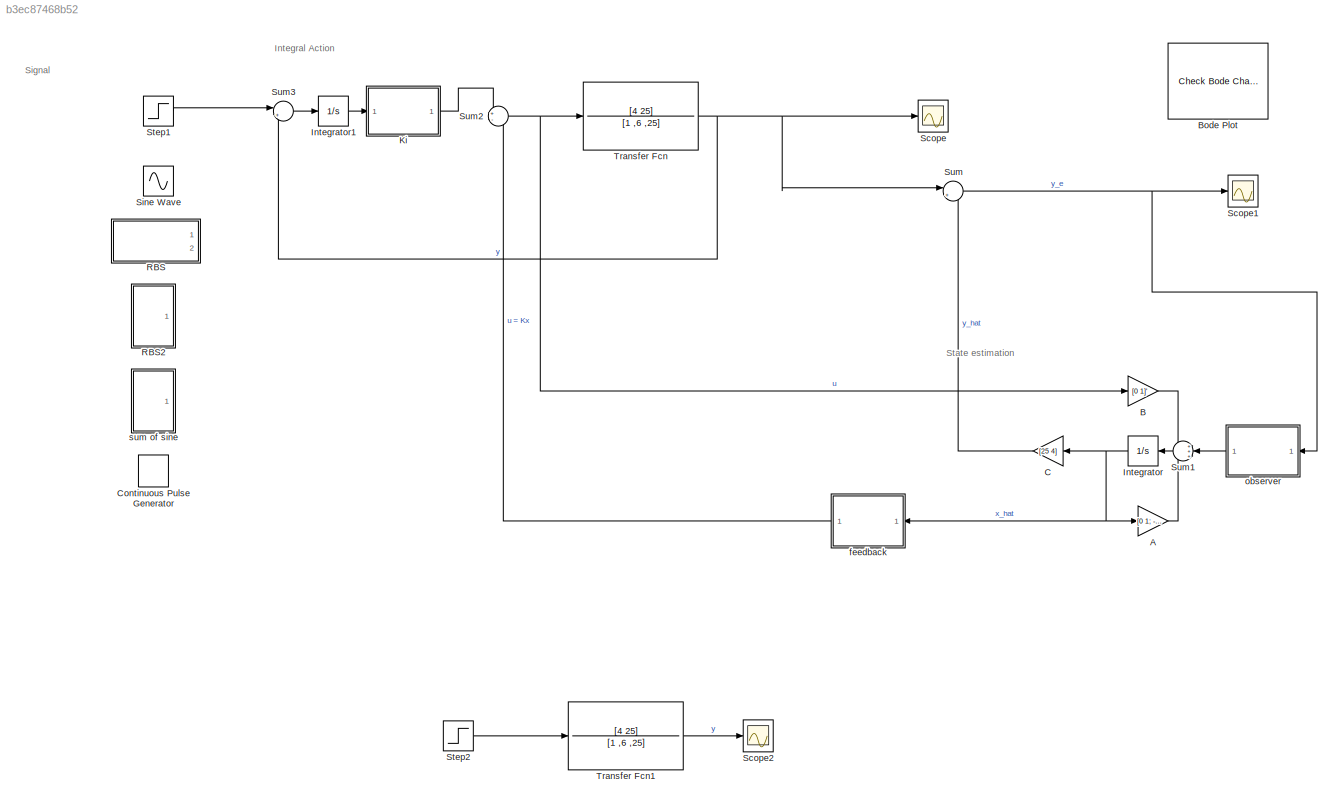
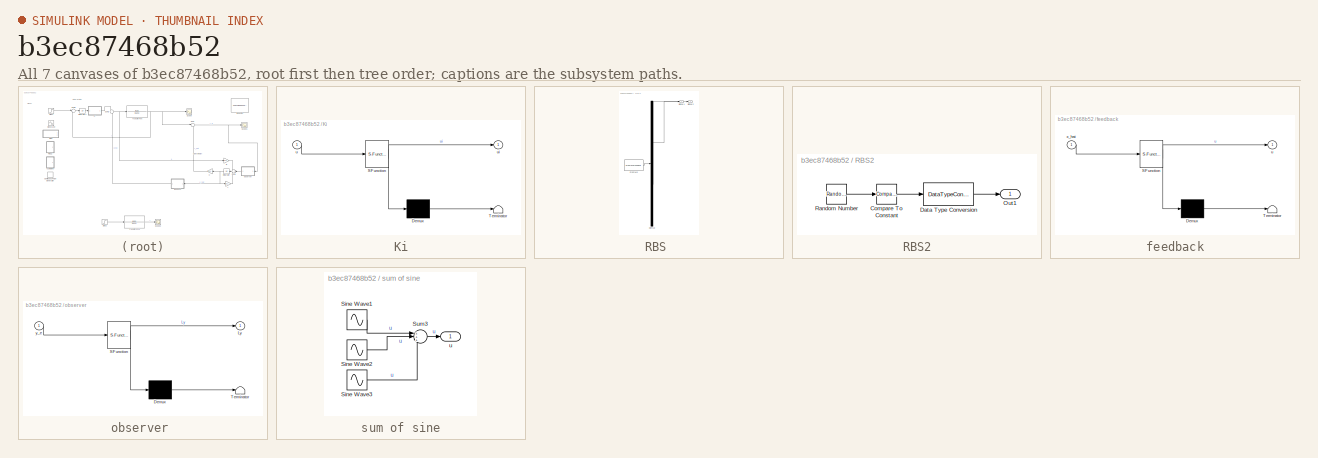
[diagram: thumbnail index - all 7 canvases of the model, root first then tree order]
MODEL slx_b3ec87468b52
KIND model
CONFIG AbsTol = auto
CONFIG EnableMultiTasking = off
CONFIG FixedStep = auto
CONFIG MaxStep = 1.0
CONFIG MinStep = auto
CONFIG RelTol = 1e-3
CONFIG SampleTimeConstraint = Unconstrained
CONFIG Solver = ode45
CONFIG SolverName = ode45
CONFIG StartTime = 0.0
CONFIG StopTime = 50.0
BLOCK [Gain] A
  Gain = [0 1; -25 -6]
  Multiplication = Matrix(K*u)
  OutDataTypeStr = Inherit: Inherit via internal rule
  ParamDataTypeStr = Inherit: Inherit via internal rule
  SaturateOnIntegerOverflow = off
BLOCK [Gain] B
  Gain = [0 1]'
  Multiplication = Matrix(K*u)
  OutDataTypeStr = Inherit: Inherit via internal rule
  ParamDataTypeStr = Inherit: Inherit via internal rule
  SaturateOnIntegerOverflow = off
BLOCK [Reference] Bode Plot  REF=slctrlblks/Model Verification/Check Bode 
Characteristics
  InstantiateOnLoad = on
  Ports = []
  SourceBlock = slctrlblks/Model Verification/Check Bode \nCharacteristics
  SourceProductBaseCode = SD
  SourceProductName = Simulink Control Design
  SourceType = Checks_Bode
BLOCK [Gain] C
  Gain = [25 4]
  Multiplication = Matrix(K*u)
  OutDataTypeStr = Inherit: Inherit via internal rule
  ParamDataTypeStr = Inherit: Inherit via internal rule
  SaturateOnIntegerOverflow = off
BLOCK [DiscretePulseGenerator] Continuous Pulse Generator
  Period = 1
  Ports = [0, 1]
  PulseType = Time based
  PulseWidth = 50
BLOCK [Integrator] Integrator
  Ports = [1, 1]
BLOCK [Integrator] Integrator1
  Ports = [1, 1]
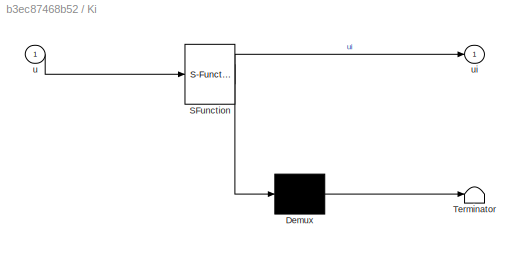
BLOCK [SubSystem] Ki
  ErrorFcn = Stateflow.Translate.translate
  PermitHierarchicalResolution = ExplicitOnly
  Ports = [1, 1]
  RequestExecContextInheritance = off
  SFBlockType = MATLAB Function
  TreatAsAtomicUnit = on
BLOCK [Demux] Ki/ Demux 
  Outputs = 1
  Ports = [1, 1]
BLOCK [S-Function] Ki/ SFunction 
  EnableBusSupport = on
  FunctionName = sf_sfun
  PortCounts = [1 2]
  Ports = [1, 2]
  SFcnIsStateOwnerBlock = off
  SFunctionDeploymentMode = off
  Tag = Stateflow S-Function 2
BLOCK [Terminator] Ki/ Terminator 
BLOCK [Inport] Ki/u
  IconDisplay = Port number
BLOCK [Outport] Ki/ui
  IconDisplay = Port number
BLOCK [SubSystem] RBS 
  ClipboardFcn = sigbuilder_block('clipboard');
  CloseFcn = sigbuilder_block('close');
  ContinueFcn = sigbuilder_block('continue');
  CopyFcn = sigbuilder_block('copy');
  DeleteFcn = sigbuilder_block('delete');
  LoadFcn = sigbuilder_block('load');
  MaskHideContents = on
  ModelCloseFcn = sigbuilder_block('modelClose');
  NameChangeFcn = sigbuilder_block('namechange');
  OpenFcn = sigbuilder_block('open',[215 62.5 550.5 362.5 ]);
  PauseFcn = sigbuilder_block('pause');
  Ports = [0, 2]
  PreSaveFcn = sigbuilder_block('preSave');
  RequestExecContextInheritance = off
  StartFcn = sigbuilder_block('start');
  StopFcn = sigbuilder_block('stop');
  Tag = STV Subsys
BLOCK [Demux] RBS /Demux
  Outputs = 2
  Ports = [1, 2]
  Tag = STV Demux
BLOCK [FromWorkspace] RBS /FromWs
  SampleTime = 0
  Tag = STV FromWs
  VariableName = tuvar
  ZeroCross = on
BLOCK [Outport] RBS /Signal 1
  IconDisplay = Port number
  Tag = STV Outport
BLOCK [Outport] RBS /Signal 2
  IconDisplay = Port number
  Port = 2
  Tag = STV Outport
BLOCK [SubSystem] RBS2
  Ports = [0, 1]
  RequestExecContextInheritance = off
BLOCK [Reference] RBS2/Compare To Constant  REF=simulink/Logic and Bit
Operations/Compare
To Constant
  Ports = [1, 1]
  SourceBlock = simulink/Logic and Bit\nOperations/Compare\nTo Constant
  SourceProductBaseCode = SL
  SourceProductName = Simulink
  SourceType = Compare To Constant
BLOCK [DataTypeConversion] RBS2/Data Type Conversion
  OutDataTypeStr = double
  RndMeth = Floor
  SaturateOnIntegerOverflow = off
BLOCK [Outport] RBS2/Out1
  IconDisplay = Port number
BLOCK [RandomNumber] RBS2/Random Number
  Mean = 1
  SampleTime = 10
BLOCK [Scope] Scope
  Floating = off
  NumInputPorts = 1
  Ports = [1]
  ScopeSpecificationString = Simulink.scopes.TimeScopeBlockCfg('CurrentConfiguration', extmgr.ConfigurationSet(extmgr.Configuration('Core','General UI',true),extmgr.Configuration('Core','Source UI',true),extmgr.Configuration('Sources','WiredSimulink',true,'DataLoggingVariableName','ScopeData1'),extmgr.Configuration('Visuals','Time Domain',true,'SerializedDisplays',{struct('MinYLimReal','-0.14795','MaxYLimReal','1.33155','YLab...<+1430ch>
BLOCK [Scope] Scope1
  Floating = off
  NumInputPorts = 1
  Ports = [1]
  ScopeSpecificationString = Simulink.scopes.TimeScopeBlockCfg('CurrentConfiguration', extmgr.ConfigurationSet(extmgr.Configuration('Core','General UI',true),extmgr.Configuration('Core','Source UI',true),extmgr.Configuration('Sources','WiredSimulink',true),extmgr.Configuration('Visuals','Time Domain',true,'SerializedDisplays',{struct('MinYLimReal','-0.0056','MaxYLimReal','0.05037','YLabelReal','','MinYLimMag','0.00000','MaxYL...<+1389ch>
BLOCK [Scope] Scope2
  Floating = off
  NumInputPorts = 1
  Ports = [1]
  ScopeSpecificationString = Simulink.scopes.TimeScopeBlockCfg('CurrentConfiguration', extmgr.ConfigurationSet(extmgr.Configuration('Core','General UI',true),extmgr.Configuration('Core','Source UI',true),extmgr.Configuration('Sources','WiredSimulink',true,'DataLoggingVariableName','ScopeData1'),extmgr.Configuration('Visuals','Time Domain',true,'SerializedDisplays',{struct('MinYLimReal','-0.14399','MaxYLimReal','1.29593','YLab...<+1430ch>
BLOCK [Sin] Sine Wave
  Frequency = 0.1
  Ports = [0, 1]
  SampleTime = 0
BLOCK [Step] Step1
  SampleTime = 0
BLOCK [Step] Step2
  SampleTime = 0
BLOCK [Sum] Sum
  IconShape = round
  InputSameDT = off
  Inputs = |+-
  OutDataTypeStr = Inherit: Inherit via internal rule
  Ports = [2, 1]
  SaturateOnIntegerOverflow = off
BLOCK [Sum] Sum1
  IconShape = round
  InputSameDT = off
  Inputs = +++
  OutDataTypeStr = Inherit: Inherit via internal rule
  Ports = [3, 1]
  SaturateOnIntegerOverflow = off
BLOCK [Sum] Sum2
  IconShape = round
  InputSameDT = off
  Inputs = +-
  OutDataTypeStr = Inherit: Inherit via internal rule
  Ports = [2, 1]
  SaturateOnIntegerOverflow = off
BLOCK [Sum] Sum3
  IconShape = round
  InputSameDT = off
  Inputs = |+-
  OutDataTypeStr = Inherit: Inherit via internal rule
  Ports = [2, 1]
  SaturateOnIntegerOverflow = off
BLOCK [TransferFcn] Transfer Fcn
  Denominator = [1 ,6 ,25]
  Numerator = [4 25]
BLOCK [TransferFcn] Transfer Fcn1
  Denominator = [1 ,6 ,25]
  Numerator = [4 25]
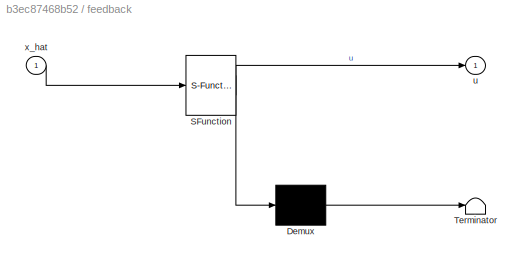
BLOCK [SubSystem] feedback
  ErrorFcn = Stateflow.Translate.translate
  PermitHierarchicalResolution = ExplicitOnly
  Ports = [1, 1]
  RequestExecContextInheritance = off
  SFBlockType = MATLAB Function
  TreatAsAtomicUnit = on
BLOCK [Demux] feedback/ Demux 
  Outputs = 1
  Ports = [1, 1]
BLOCK [S-Function] feedback/ SFunction 
  EnableBusSupport = on
  FunctionName = sf_sfun
  PortCounts = [1 2]
  Ports = [1, 2]
  SFcnIsStateOwnerBlock = off
  SFunctionDeploymentMode = off
  Tag = Stateflow S-Function 4
BLOCK [Terminator] feedback/ Terminator 
BLOCK [Outport] feedback/u
  IconDisplay = Port number
BLOCK [Inport] feedback/x_hat
  IconDisplay = Port number
BLOCK [SubSystem] observer 
  ErrorFcn = Stateflow.Translate.translate
  PermitHierarchicalResolution = ExplicitOnly
  Ports = [1, 1]
  RequestExecContextInheritance = off
  SFBlockType = MATLAB Function
  TreatAsAtomicUnit = on
BLOCK [Demux] observer / Demux 
  Outputs = 1
  Ports = [1, 1]
BLOCK [S-Function] observer / SFunction 
  EnableBusSupport = on
  FunctionName = sf_sfun
  PortCounts = [1 2]
  Ports = [1, 2]
  SFcnIsStateOwnerBlock = off
  SFunctionDeploymentMode = off
  Tag = Stateflow S-Function 1
BLOCK [Terminator] observer / Terminator 
BLOCK [Outport] observer /Ly
  IconDisplay = Port number
BLOCK [Inport] observer /y_e
  IconDisplay = Port number
BLOCK [SubSystem] sum of sine
  Ports = [0, 1]
  RequestExecContextInheritance = off
BLOCK [Sin] sum of sine/Sine Wave1
  Frequency = 0.1
  Phase = 0.1
  Ports = [0, 1]
  SampleTime = 0
BLOCK [Sin] sum of sine/Sine Wave2
  Ports = [0, 1]
  SampleTime = 0
BLOCK [Sin] sum of sine/Sine Wave3
  Frequency = 2
  Ports = [0, 1]
  SampleTime = 0
BLOCK [Sum] sum of sine/Sum3
  IconShape = round
  InputSameDT = off
  Inputs = +++
  OutDataTypeStr = Inherit: Inherit via internal rule
  Ports = [3, 1]
  SaturateOnIntegerOverflow = off
BLOCK [Outport] sum of sine/u
  IconDisplay = Port number
ANNOTATION (root): Integral Action
ANNOTATION (root): Signal
ANNOTATION (root): State estimation
LINE A:1 -> Sum1:3
LINE B:1 -> Sum1:1
LINE C:1 -> Sum:2
LINE Integrator1:1 -> Ki:1
NET Integrator:1 -> A:1, C:1, feedback:1
LINE Ki:1 -> Sum2:1
LINE RBS2/Compare To Constant:1 -> RBS2/Data Type Conversion:1
LINE RBS2/Data Type Conversion:1 -> RBS2/Out1:1
LINE RBS2/Random Number:1 -> RBS2/Compare To Constant:1
LINE Step1:1 -> Sum3:1
LINE Step2:1 -> Transfer Fcn1:1
LINE Sum1:1 -> Integrator:1
NET Sum2:1 -> B:1, Transfer Fcn:1
LINE Sum3:1 -> Integrator1:1
NET Sum:1 -> Scope1:1, observer :1
LINE Transfer Fcn1:1 -> Scope2:1
NET Transfer Fcn:1 -> Scope:1, Sum3:2, Sum:1
LINE feedback:1 -> Sum2:2
LINE observer :1 -> Sum1:2
LINE sum of sine/Sine Wave1:1 -> sum of sine/Sum3:1
LINE sum of sine/Sine Wave2:1 -> sum of sine/Sum3:2
LINE sum of sine/Sine Wave3:1 -> sum of sine/Sum3:3
LINE sum of sine/Sum3:1 -> sum of sine/u:1
note: NET lines group one-source signal fan-out (src -> all destinations, sorted); 1:1 wires keep LINE
CHART observer
 states=1 transitions=1
  STATE_LABEL 'eML_blk_kernel()'
  STATE_LABEL 'SCRIPT:\nfunction Ly  = fcn(y_e)\ncoder.extrinsic("ss","place","matsplit",\'ctrb\');\nLy = [0 0];\nA = [0 1; -25 -6];\nB = [0 1]\';\nC = [25 4]; \n\n%observer design\na0 = 25;\na1 = 6;\nP = ctrb(A,B);\nPccf1 = [a1 1; 1 0];\np1 = -300; p2 = -300; \nalpha = [-(p1+p2) p1*p2];\nL = [alpha(2)-a0 alpha(1)-a1]*inv(P*Pccf1);\nLy = L*y_e;\n\n\n\n'
CHART Ki states=1 transitions=1
  STATE_LABEL 'eML_blk_kernel()'
  STATE_LABEL 'SCRIPT:\nfunction ui = fcn(u)\n coder.extrinsic("ss","place","matsplit",\'ctrb\');\n% [b2, b1, b0, a1, a0] = matsplit(theta);\nui = 0;\nA = [0 1; -25 -6];\nB = [0 1]\';\nC = [25 4]; \n\no = [0 0]\';\nA1 = [A o;C 0];\nB1 = [B;0];\np = [-30+4i -30-4i -10]; %let third pole be less affective\nK1 = place(A1,B1,p);\nKi = [K1(3)];\nui = Ki*u;\n'
CHART feedback states=1 transitions=1
  STATE_LABEL 'eML_blk_kernel()'
  STATE_LABEL 'SCRIPT:\nfunction u = fcn(x_hat)\n coder.extrinsic("ss","place","matsplit",\'ctrb\');\n% [b2, b1, b0, a1, a0] = matsplit(theta);\n%[0 4 25 6 25]\n% A = [0 1; -theta(5) -theta(4)];\n% B = [0 1]\';\n% C = [theta(3) theta(2)];\n\nK = [0 0];\nu = 0;\nA = [0 1; -25 -6];\nB = [0 1]\';\nC = [25 4]; \n\n%servomechanism\no = [0 0]\';\nA1 = [A o;C 0];\nB1 = [B;0];\n%p = [-30+0.01i -30-0.01i -0.15]; %let third pole be less affectiv...<+80ch>'
